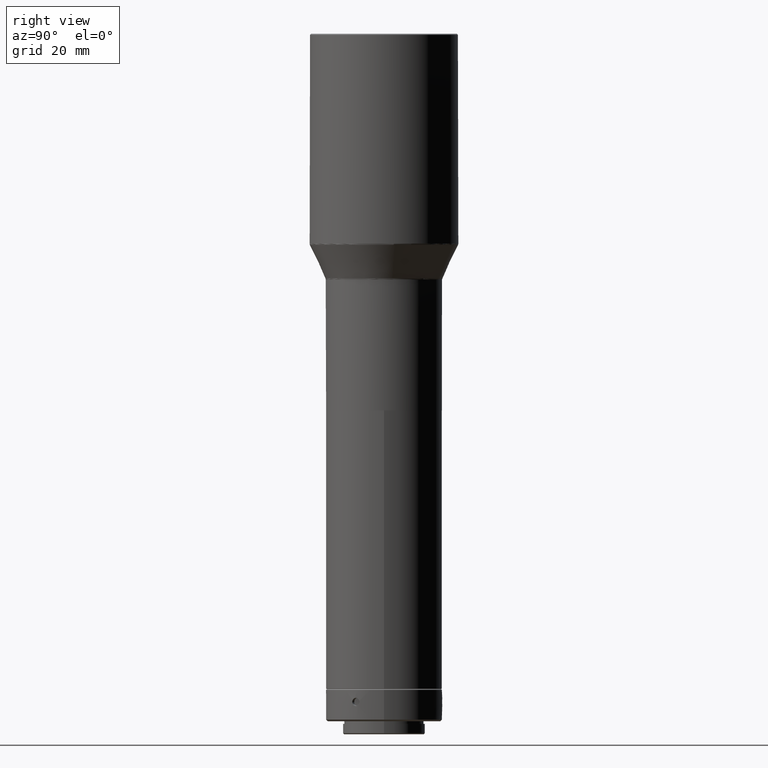
[diagram: clean part render]
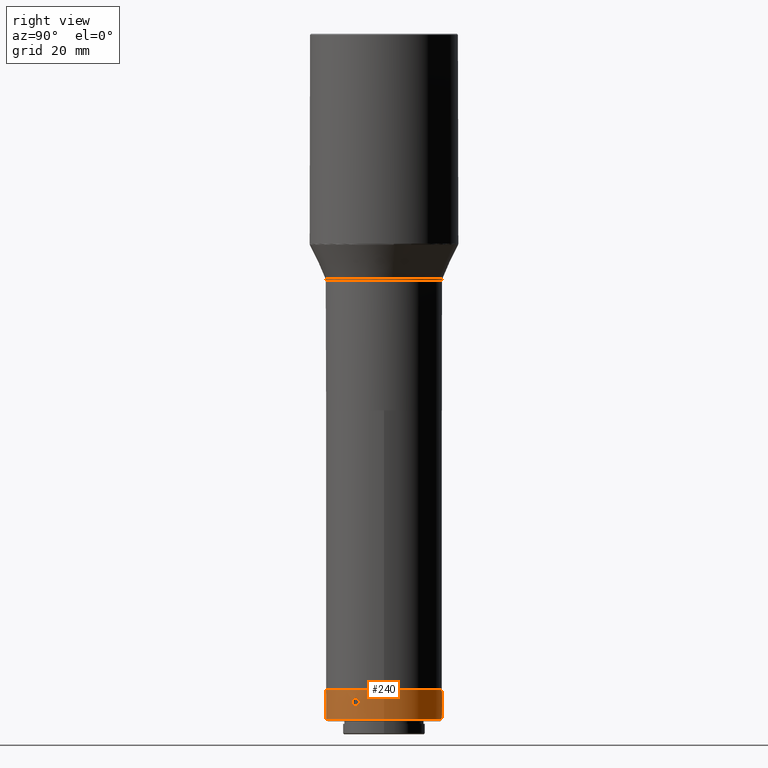
[diagram: same view with one face highlighted and labeled with its STEP entity id]
A machine part, right view. The second image highlights one B-rep face of the part: STEP entity #240.
In plain terms, the highlighted cylindrical surface (bore or boss wall) has radius 18 mm, axis along (-0, 0, 1).
Its self-contained STEP definition (entity closure, byte-faithful):
#1 = CARTESIAN_POINT ( 'NONE',  ( 0.3056981769238560354, 17.99803261489838491, -708.2936861845228123 ) ) ;
#2 = AXIS2_PLACEMENT_3D ( 'NONE', #173, #441, #88 ) ;
#6 = CARTESIAN_POINT ( 'NONE',  ( 0.9269931460123199685, 17.97611425495641768, -709.3859819999996716 ) ) ;
#12 = CARTESIAN_POINT ( 'NONE',  ( -0.9524967157959141062, 17.97541040824361147, -710.4782781720306275 ) ) ;
#20 = FACE_OUTER_BOUND ( 'NONE', #407, .T. ) ;
#24 = CARTESIAN_POINT ( 'NONE',  ( 0.4430816361384990465, 17.99492547604172898, -710.3870786175242529 ) ) ;
#28 = CARTESIAN_POINT ( 'NONE',  ( 0.9269931460123199685, 17.97611425495641768, -709.3859819999996716 ) ) ;
#30 = CARTESIAN_POINT ( 'NONE',  ( 18.00000000000003197, -1.136367993157541880E-17, -714.8859819999998990 ) ) ;
#40 = CARTESIAN_POINT ( 'NONE',  ( 16.30144464058745157, -7.633272891719546926, -709.7132828894949625 ) ) ;
#45 = CARTESIAN_POINT ( 'NONE',  ( 15.66917049745820556, -8.860230788585409911, -710.6360943759024167 ) ) ;
#60 = CARTESIAN_POINT ( 'NONE',  ( -16.03126817913006619, -8.185257513897349568, -709.3859820000002401 ) ) ;
#63 = CARTESIAN_POINT ( 'NONE',  ( 0.4451712908963872950, 17.99486434055518558, -708.3868125139827043 ) ) ;
#66 = ORIENTED_EDGE ( 'NONE', *, *, #842, .T. ) ;
#68 = CARTESIAN_POINT ( 'NONE',  ( 15.10427503311762365, -9.790856741059009494, -709.3859820000001264 ) ) ;
#71 = EDGE_LOOP ( 'NONE', ( #235 ) ) ;
#79 = CARTESIAN_POINT ( 'NONE',  ( -0.9520934320810345852, 17.97544003455838890, -708.2933063457097660 ) ) ;
#82 = CARTESIAN_POINT ( 'NONE',  ( -15.73941293635108885, -8.734632603133396955, -710.4786580156604714 ) ) ;
#83 = CARTESIAN_POINT ( 'NONE',  ( 0.9269931460123050915, 17.97611425495641413, -709.2207827607343233 ) ) ;
#88 = DIRECTION ( 'NONE',  ( -0.9998384006287833747, -0.01797700275564777933, 0.000000000000000000 ) ) ;
#93 = CARTESIAN_POINT ( 'NONE',  ( -1.540114082045512811, 17.93410162299419142, -709.7132828894951899 ) ) ;
#97 = CARTESIAN_POINT ( 'NONE',  ( -14.74254899998473256, -10.32749964817480048, -709.5511832896939950 ) ) ;
#98 = CARTESIAN_POINT ( 'NONE',  ( 0.3052927411383662415, 17.99804774510016614, -710.4786580156603577 ) ) ;
#101 = AXIS2_PLACEMENT_3D ( 'NONE', #755, #555, #198 ) ;
#104 = CARTESIAN_POINT ( 'NONE',  ( 15.18991736171799545, -9.657658253331682374, -708.7559756262728570 ) ) ;
#152 = DIRECTION ( 'NONE',  ( 1.000000000000000000, 0.000000000000000000, 0.000000000000000000 ) ) ;
#154 = CARTESIAN_POINT ( 'NONE',  ( -16.03126817913006619, -8.185257513897349568, -709.3859820000002401 ) ) ;
#155 = B_SPLINE_CURVE_WITH_KNOTS ( 'NONE', 3,
 ( #60, #350, #643, #592, #161, #891, #750, #602, #453, #510, #740, #595, #875, #437, #611, #672, #387, #97, #448, #516, #310, #236, #318, #737, #520, #803, #880, #82, #820, #172, #525, #813, #816, #154 ),
 .UNSPECIFIED., .T., .F.,
 ( 4, 2, 2, 2, 2, 2, 2, 2, 2, 2, 2, 2, 2, 2, 2, 2, 4 ),
 ( 0.000000000000000000, 0.0004885519476059315943, 0.0009771038952118631885, 0.001465655842817794674, 0.001954207790423723775, 0.002442759738029653526, 0.002931311685635582410, 0.003419863633241511727, 0.003908415580847440611, 0.004396967528453369495, 0.004885519476059299246, 0.005374071423665228130, 0.005862623371271156146, 0.006351175318877085030, 0.006839727266483013046, 0.007328279214088939328, 0.007816831161694865610 ),
 .UNSPECIFIED. ) ;
#161 = CARTESIAN_POINT ( 'NONE',  ( -15.91572712206537688, -8.408504640492013849, -708.6173508769151113 ) ) ;
#162 = CARTESIAN_POINT ( 'NONE',  ( -1.572603158213087493, 17.93117172152393124, -709.2207852969527266 ) ) ;
#172 = CARTESIAN_POINT ( 'NONE',  ( -15.91614287787787596, -8.407738109358300349, -710.1539021707620805 ) ) ;
#173 = CARTESIAN_POINT ( 'NONE',  ( -9.001925967183377126E-16, 8.439305594234403114E-17, -705.6859819999998535 ) ) ;
#179 = CARTESIAN_POINT ( 'NONE',  ( -1.572602552901965600, 17.93117177461103751, -709.5511832896943361 ) ) ;
#180 = CARTESIAN_POINT ( 'NONE',  ( 16.10503639320179303, -8.039991729414808219, -708.3848859321259397 ) ) ;
#187 = AXIS2_PLACEMENT_3D ( 'NONE', #865, #225, #152 ) ;
#192 = CARTESIAN_POINT ( 'NONE',  ( 16.10596079631596922, -8.038118370154979431, -710.3851520424838100 ) ) ;
#198 = DIRECTION ( 'NONE',  ( 1.000000000000000000, 0.000000000000000000, 0.000000000000000000 ) ) ;
#202 = B_SPLINE_CURVE_WITH_KNOTS ( 'NONE', 3,
 ( #604, #528, #614, #104, #679, #892, #817, #624, #248, #253, #823, #542, #180, #757, #827, #464, #762, #691, #40, #327, #833, #192, #768, #404, #696, #45, #264, #552, #332, #629, #907, #860, #719, #68 ),
 .UNSPECIFIED., .T., .F.,
 ( 4, 2, 2, 2, 2, 2, 2, 2, 2, 2, 2, 2, 2, 2, 2, 2, 4 ),
 ( 0.000000000000000000, 0.0004885519476059293174, 0.0009771038952118586349, 0.001465655842817787952, 0.001954207790423717270, 0.002442759738029646587, 0.002931311685635575905, 0.003419863633241505222, 0.003908415580847434539, 0.004396967528453364291, 0.004885519476059293174, 0.005374071423665222058, 0.005862623371271151809, 0.006351175318877081560, 0.006839727266483010444, 0.007328279214088939328, 0.007816831161694869079 ),
 .UNSPECIFIED. ) ;
#213 = CARTESIAN_POINT ( 'NONE',  ( -0.1596727819542042848, 18.00003051024205192, -708.1360949727662728 ) ) ;
#215 = VERTEX_POINT ( 'NONE', #358 ) ;
#219 = CIRCLE ( 'NONE', #2, 18.00000000000001421 ) ;
#220 = FACE_BOUND ( 'NONE', #71, .T. ) ;
#225 = DIRECTION ( 'NONE',  ( -1.110223024625154075E-16, 1.040834085586083024E-17, 1.000000000000000000 ) ) ;
#234 = FACE_BOUND ( 'NONE', #698, .T. ) ;
#235 = ORIENTED_EDGE ( 'NONE', *, *, #444, .T. ) ;
#236 = CARTESIAN_POINT ( 'NONE',  ( -15.01419510533859913, -9.929112016888341330, -710.3851520424836963 ) ) ;
#240 = ADVANCED_FACE ( 'NONE', ( #522, #234, #590, #20, #220 ), #294, .T. ) ;
#241 = CARTESIAN_POINT ( 'NONE',  ( 0.7685872167190926918, 17.98369360690473329, -710.0164079346062636 ) ) ;
#248 = CARTESIAN_POINT ( 'NONE',  ( 15.66832008174147717, -8.861734569656125160, -708.1360949727661591 ) ) ;
#253 = CARTESIAN_POINT ( 'NONE',  ( 15.82630566480416867, -8.576400338786035249, -708.1358696239670962 ) ) ;
#255 = EDGE_LOOP ( 'NONE', ( #784 ) ) ;
#262 = ORIENTED_EDGE ( 'NONE', *, *, #462, .F. ) ;
#264 = CARTESIAN_POINT ( 'NONE',  ( 15.58777103606773728, -9.002461908823859105, -710.6037669096965601 ) ) ;
#281 = CARTESIAN_POINT ( 'NONE',  ( 0.004848058731487128389, 18.00062793012086004, -708.1689666990357637 ) ) ;
#293 = CARTESIAN_POINT ( 'NONE',  ( -0.4857722659883412786, 17.99418292317097823, -708.1358696239669825 ) ) ;
#294 = CYLINDRICAL_SURFACE ( 'NONE', #187, 18.00000000000003197 ) ;
#310 = CARTESIAN_POINT ( 'NONE',  ( -14.88563852262578635, -10.12082436755074788, -710.1546141668026166 ) ) ;
#318 = CARTESIAN_POINT ( 'NONE',  ( -15.09091369909215175, -9.812591557022431132, -710.4782781720306275 ) ) ;
#327 = CARTESIAN_POINT ( 'NONE',  ( 16.24772646129461862, -7.746956644292287919, -710.0159896652777434 ) ) ;
#332 = CARTESIAN_POINT ( 'NONE',  ( 15.36252178339075947, -9.381182690867026608, -710.3870786175247076 ) ) ;
#350 = CARTESIAN_POINT ( 'NONE',  ( -16.03126817913008040, -8.185257513897322923, -709.2207827607352328 ) ) ;
#358 = CARTESIAN_POINT ( 'NONE',  ( -16.03126817913006263, -8.185257513897349568, -709.3859820000001264 ) ) ;
#367 = CARTESIAN_POINT ( 'NONE',  ( -1.089681112711263777, 17.96736651009305064, -708.3848859321260534 ) ) ;
#384 = CARTESIAN_POINT ( 'NONE',  ( -1.414801974673502105, 17.94442219136793071, -710.0159896652778571 ) ) ;
#387 = CARTESIAN_POINT ( 'NONE',  ( -14.74254865135443460, -10.32750014584598475, -709.2207852969528403 ) ) ;
#397 = EDGE_CURVE ( 'NONE', #862, #862, #202, .T. ) ;
#404 = CARTESIAN_POINT ( 'NONE',  ( 15.90474159483192373, -8.429817562677053289, -710.6029973772537005 ) ) ;
#407 = EDGE_LOOP ( 'NONE', ( #262 ) ) ;
#425 = CARTESIAN_POINT ( 'NONE',  ( 0.6758849345269239972, 17.98767632765562752, -708.6173508769145428 ) ) ;
#427 = CARTESIAN_POINT ( 'NONE',  ( -17.99709121131811429, -0.3235860496016602084, -705.6859819999998535 ) ) ;
#434 = CARTESIAN_POINT ( 'NONE',  ( -0.6495643662030645693, 17.98891304313786677, -708.1681971631305714 ) ) ;
#437 = CARTESIAN_POINT ( 'NONE',  ( -14.88515518666638293, -10.12155221812699502, -708.6180628980898746 ) ) ;
#439 = CARTESIAN_POINT ( 'NONE',  ( 0.8944205773262788872, 17.97787429661313041, -709.0586829706279559 ) ) ;
#441 = DIRECTION ( 'NONE',  ( -1.110223024625154075E-16, 1.040834085586083024E-17, 1.000000000000000000 ) ) ;
#444 = EDGE_CURVE ( 'NONE', #915, #915, #799, .T. ) ;
#445 = CARTESIAN_POINT ( 'NONE',  ( 0.9269931460123348455, 17.97611425495642123, -709.5511812392651336 ) ) ;
#448 = CARTESIAN_POINT ( 'NONE',  ( -14.76133055854199050, -10.30082873127459386, -709.7132828894949625 ) ) ;
#453 = CARTESIAN_POINT ( 'NONE',  ( -15.50864729978774115, -9.138295940585880572, -708.1360949727660454 ) ) ;
#459 = CARTESIAN_POINT ( 'NONE',  ( 0.8943425777035741708, 17.97787844575762506, -709.7136070172556401 ) ) ;
#462 = EDGE_CURVE ( 'NONE', #569, #569, #219, .T. ) ;
#464 = CARTESIAN_POINT ( 'NONE',  ( 16.30141220058608553, -7.633342800186751376, -709.0583587959085889 ) ) ;
#469 = ORIENTED_EDGE ( 'NONE', *, *, #397, .T. ) ;
#492 = CARTESIAN_POINT ( 'NONE',  ( 0.7688187075944147297, 17.98368344329993462, -708.7559756262725159 ) ) ;
#504 = CIRCLE ( 'NONE', #101, 18.00000000000003197 ) ;
#510 = CARTESIAN_POINT ( 'NONE',  ( -15.34053339881628375, -9.417782584384911004, -708.1358696239673236 ) ) ;
#516 = CARTESIAN_POINT ( 'NONE',  ( -14.83292448662110985, -10.19746554707558417, -710.0159896652777434 ) ) ;
#520 = CARTESIAN_POINT ( 'NONE',  ( -15.33962966904379144, -9.419254499269218428, -710.6358690273636967 ) ) ;
#521 = CARTESIAN_POINT ( 'NONE',  ( -1.414572572238186110, 17.94444054509506614, -708.7555574048875542 ) ) ;
#522 = FACE_OUTER_BOUND ( 'NONE', #529, .T. ) ;
#525 = CARTESIAN_POINT ( 'NONE',  ( -15.95862912581485382, -8.326230748749633648, -710.0164079346062636 ) ) ;
#527 = CARTESIAN_POINT ( 'NONE',  ( -1.091765690977236414, 17.96723038704337228, -710.3851520424839237 ) ) ;
#528 = CARTESIAN_POINT ( 'NONE',  ( 15.10427503311760766, -9.790856741059030810, -709.2207827607348918 ) ) ;
#529 = EDGE_LOOP ( 'NONE', ( #66 ) ) ;
#535 = CARTESIAN_POINT ( 'NONE',  ( -1.322943753295868108, 17.95169863999025850, -708.6180628980899883 ) ) ;
#542 = CARTESIAN_POINT ( 'NONE',  ( 16.04323443017172934, -8.163182918321075121, -708.2933063457095386 ) ) ;
#552 = CARTESIAN_POINT ( 'NONE',  ( 15.43412019521289658, -9.263415141966714117, -710.4786580156604714 ) ) ;
#555 = DIRECTION ( 'NONE',  ( -1.110223024625154075E-16, 1.040834085586083024E-17, 1.000000000000000000 ) ) ;
#569 = VERTEX_POINT ( 'NONE', #427 ) ;
#590 = FACE_BOUND ( 'NONE', #255, .T. ) ;
#592 = CARTESIAN_POINT ( 'NONE',  ( -15.95873606931271915, -8.326025189968197182, -708.7559756262731980 ) ) ;
#595 = CARTESIAN_POINT ( 'NONE',  ( -15.09114099809113618, -9.812257116237294241, -708.2933063457095386 ) ) ;
#602 = CARTESIAN_POINT ( 'NONE',  ( -15.59142510092233636, -8.996115423039519499, -708.1689666990364458 ) ) ;
#603 = CARTESIAN_POINT ( 'NONE',  ( -0.4874988465559367823, 17.99413622767201915, -710.6358690273638103 ) ) ;
#604 = CARTESIAN_POINT ( 'NONE',  ( 15.10427503311762365, -9.790856741059009494, -709.3859820000001264 ) ) ;
#611 = CARTESIAN_POINT ( 'NONE',  ( -14.83305508263288885, -10.19727605560222372, -708.7555574048873268 ) ) ;
#614 = CARTESIAN_POINT ( 'NONE',  ( 15.12208555824702216, -9.763528089938818155, -709.0586829706282970 ) ) ;
#619 = VERTEX_POINT ( 'NONE', #30 ) ;
#624 = CARTESIAN_POINT ( 'NONE',  ( 15.58657704219040063, -9.004512507081287254, -708.1689666990359910 ) ) ;
#629 = CARTESIAN_POINT ( 'NONE',  ( 15.23938623000980286, -9.579915007825810846, -710.1539021707623078 ) ) ;
#643 = CARTESIAN_POINT ( 'NONE',  ( -16.01650613557351832, -8.214346206674246531, -709.0586829706282970 ) ) ;
#662 = CARTESIAN_POINT ( 'NONE',  ( -1.322071748226572030, 17.95175329592158420, -710.1546141668028440 ) ) ;
#672 = CARTESIAN_POINT ( 'NONE',  ( -14.76137488104985174, -10.30076568317571351, -709.0583587959085889 ) ) ;
#673 = CARTESIAN_POINT ( 'NONE',  ( 0.6767566478681708020, 17.98765311718415205, -710.1539021707623078 ) ) ;
#678 = CARTESIAN_POINT ( 'NONE',  ( -1.540037319536453841, 17.93410848336250396, -709.0583587959090437 ) ) ;
#679 = CARTESIAN_POINT ( 'NONE',  ( 15.23984218753813558, -9.579171687163555049, -708.6173508769149976 ) ) ;
#691 = CARTESIAN_POINT ( 'NONE',  ( 16.31515155288662200, -7.603672126436192613, -709.5511832896939950 ) ) ;
#696 = CARTESIAN_POINT ( 'NONE',  ( 15.82712851559993794, -8.574881728402733216, -710.6358690273635830 ) ) ;
#698 = EDGE_LOOP ( 'NONE', ( #469 ) ) ;
#718 = EDGE_CURVE ( 'NONE', #215, #215, #155, .T. ) ;
#719 = CARTESIAN_POINT ( 'NONE',  ( 15.10427503311763786, -9.790856741058988177, -709.5511812392653610 ) ) ;
#737 = CARTESIAN_POINT ( 'NONE',  ( -15.25280695596253366, -9.559001480412888441, -710.6029973772534731 ) ) ;
#740 = CARTESIAN_POINT ( 'NONE',  ( -15.25407349872536855, -9.556995764093500156, -708.1681971631302304 ) ) ;
#750 = CARTESIAN_POINT ( 'NONE',  ( -15.73960255110501016, -8.734273920342163322, -708.2936861845225849 ) ) ;
#751 = CARTESIAN_POINT ( 'NONE',  ( -0.1614003024208527648, 18.00001510132116067, -710.6360943759024167 ) ) ;
#755 = CARTESIAN_POINT ( 'NONE',  ( 1.212125859368026018E-16, -1.136367993157541880E-17, -714.8859819999998990 ) ) ;
#757 = CARTESIAN_POINT ( 'NONE',  ( 16.20809893996191420, -7.830146421863255490, -708.6180628980898746 ) ) ;
#762 = CARTESIAN_POINT ( 'NONE',  ( 16.31515180956736444, -7.603671575677914518, -709.2207852969528403 ) ) ;
#768 = CARTESIAN_POINT ( 'NONE',  ( 16.04341041488822484, -8.162818851221128824, -710.4782781720306275 ) ) ;
#783 = CARTESIAN_POINT ( 'NONE',  ( 15.10427503311762543, -9.790856741059009494, -709.3859820000001264 ) ) ;
#784 = ORIENTED_EDGE ( 'NONE', *, *, #718, .T. ) ;
#799 = B_SPLINE_CURVE_WITH_KNOTS ( 'NONE', 3,
 ( #6, #83, #439, #492, #425, #63, #1, #281, #213, #293, #434, #79, #367, #535, #521, #678, #162, #179, #93, #384, #662, #527, #12, #821, #603, #751, #885, #98, #24, #673, #241, #459, #445, #28 ),
 .UNSPECIFIED., .T., .F.,
 ( 4, 2, 2, 2, 2, 2, 2, 2, 2, 2, 2, 2, 2, 2, 2, 2, 4 ),
 ( 0.000000000000000000, 0.0004885519476059292090, 0.0009771038952118584180, 0.001465655842817787519, 0.001954207790423716836, 0.002442759738029646154, 0.002931311685635575037, 0.003419863633241504355, 0.003908415580847433672, 0.004396967528453362556, 0.004885519476059292307, 0.005374071423665221191, 0.005862623371271150075, 0.006351175318877079826, 0.006839727266483008709, 0.007328279214088938461, 0.007816831161694867344 ),
 .UNSPECIFIED. ) ;
#803 = CARTESIAN_POINT ( 'NONE',  ( -15.50777019503714449, -9.139784312735695693, -710.6360943759025304 ) ) ;
#813 = CARTESIAN_POINT ( 'NONE',  ( -16.01647072902663638, -8.214415830901385718, -709.7136070172558675 ) ) ;
#816 = CARTESIAN_POINT ( 'NONE',  ( -16.03126817913005553, -8.185257513897377990, -709.5511812392653610 ) ) ;
#817 = CARTESIAN_POINT ( 'NONE',  ( 15.43390437418075045, -9.263758694556168294, -708.2936861845229259 ) ) ;
#820 = CARTESIAN_POINT ( 'NONE',  ( -15.80560341952911685, -8.613742785174650862, -710.3870786175245939 ) ) ;
#821 = CARTESIAN_POINT ( 'NONE',  ( -0.6519346388691894534, 17.98881904308999680, -710.6029973772535868 ) ) ;
#823 = CARTESIAN_POINT ( 'NONE',  ( 15.90363786492795128, -8.431917279044336411, -708.1681971631302304 ) ) ;
#827 = CARTESIAN_POINT ( 'NONE',  ( 16.24762765487077232, -7.747164489492801565, -708.7555574048873268 ) ) ;
#833 = CARTESIAN_POINT ( 'NONE',  ( 16.20771027085244143, -7.830928928370771480, -710.1546141668026166 ) ) ;
#842 = EDGE_CURVE ( 'NONE', #619, #619, #504, .T. ) ;
#860 = CARTESIAN_POINT ( 'NONE',  ( 15.12212815132300570, -9.763462614856191379, -709.7136070172560949 ) ) ;
#862 = VERTEX_POINT ( 'NONE', #783 ) ;
#865 = CARTESIAN_POINT ( 'NONE',  ( -9.334992874570883462E-16, 8.751555819910195850E-17, -705.3859819999998990 ) ) ;
#875 = CARTESIAN_POINT ( 'NONE',  ( -15.01535528049092072, -9.927374780678229982, -708.3848859321259397 ) ) ;
#880 = CARTESIAN_POINT ( 'NONE',  ( -15.59024622767711676, -8.998174751197957733, -710.6037669096969012 ) ) ;
#885 = CARTESIAN_POINT ( 'NONE',  ( 0.002475191609572396315, 18.00063666002187901, -710.6037669096971285 ) ) ;
#891 = CARTESIAN_POINT ( 'NONE',  ( -15.80659530202388474, -8.611902523325452918, -708.3868125139831591 ) ) ;
#892 = CARTESIAN_POINT ( 'NONE',  ( 15.36142401112712008, -9.382961817229672263, -708.3868125139829317 ) ) ;
#907 = CARTESIAN_POINT ( 'NONE',  ( 15.19004190909577190, -9.657462858155046348, -710.0164079346066046 ) ) ;
#915 = VERTEX_POINT ( 'NONE', #930 ) ;
#930 = CARTESIAN_POINT ( 'NONE',  ( 0.9269931460123198574, 17.97611425495641768, -709.3859819999997853 ) ) ;